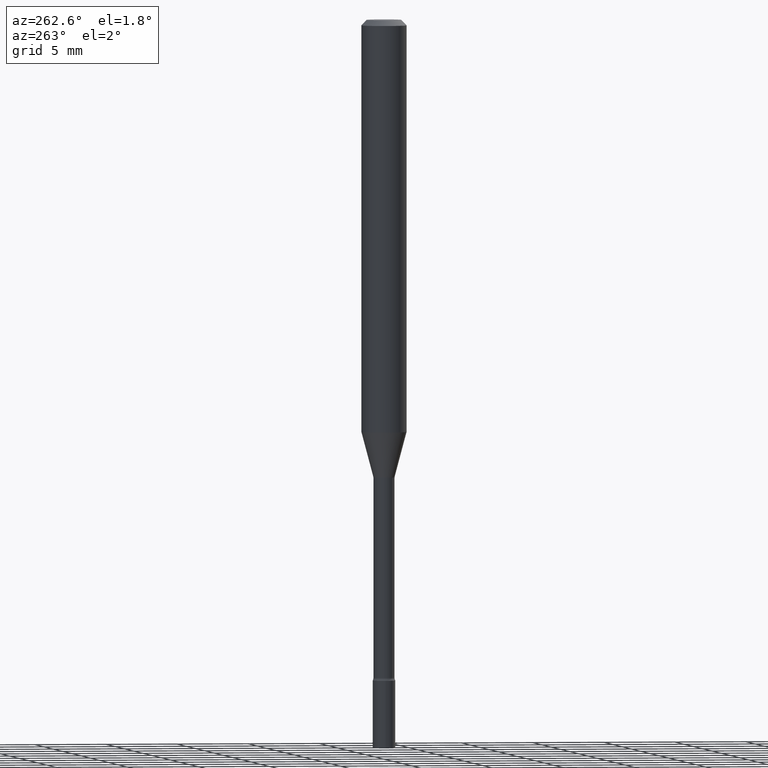
[diagram: clean part render]
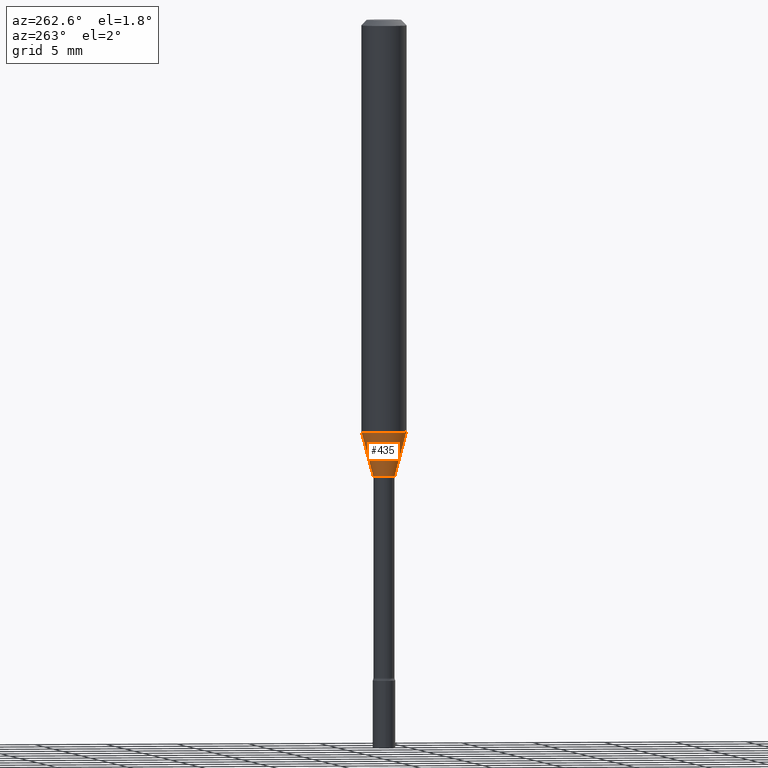
[diagram: same view with one face highlighted and labeled with its STEP entity id]
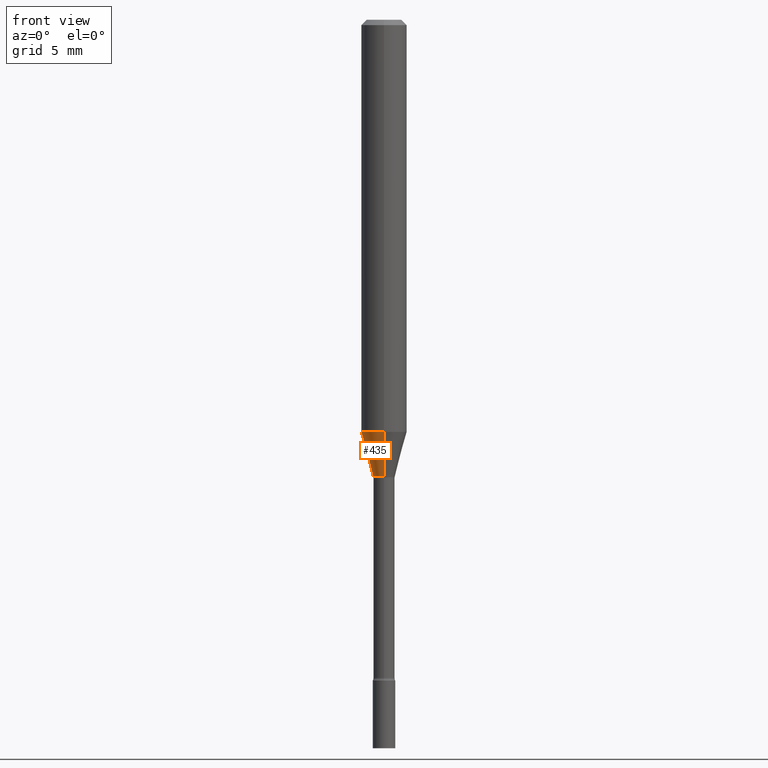
[diagram: same view with one face highlighted and labeled with its STEP entity id]
A machine part, auxiliary view. The second image highlights one B-rep face of the part: STEP entity #435.
A second angle (front view) of the same face is appended — the face is thin or edge-on in the first view.
In plain terms, the highlighted conical surface has half-angle 15 deg.
Its self-contained STEP definition (entity closure, byte-faithful):
#30 = VERTEX_POINT ( 'NONE', #201 ) ;
#35 = ORIENTED_EDGE ( 'NONE', *, *, #62, .T. ) ;
#41 = CIRCLE ( 'NONE', #130, 0.02966111260566398414 ) ;
#47 = VERTEX_POINT ( 'NONE', #249 ) ;
#54 = DIRECTION ( 'NONE',  ( -2.445484289899004441E-29, 3.491459165283608799E-15, 1.000000000000000000 ) ) ;
#62 = EDGE_CURVE ( 'NONE', #47, #30, #41, .T. ) ;
#87 = ORIENTED_EDGE ( 'NONE', *, *, #387, .T. ) ;
#117 = FACE_OUTER_BOUND ( 'NONE', #463, .T. ) ;
#121 = CARTESIAN_POINT ( 'NONE',  ( 4.440892098500900291E-16, 0.06249999999999602401, -1.131536105567578554 ) ) ;
#130 = AXIS2_PLACEMENT_3D ( 'NONE', #389, #54, #147 ) ;
#136 = EDGE_CURVE ( 'NONE', #47, #423, #365, .T. ) ;
#147 = DIRECTION ( 'NONE',  ( -6.982962677686265922E-15, -1.000000000000000000, 0.000000000000000000 ) ) ;
#168 = DIRECTION ( 'NONE',  ( 1.839019923739600710E-15, 0.2588190451025250138, 0.9659258262890670910 ) ) ;
#173 = CARTESIAN_POINT ( 'NONE',  ( -2.071224423039705600E-16, -0.02966111260566836605, -1.254092501787273051 ) ) ;
#176 = DIRECTION ( 'NONE',  ( -2.445484289899004441E-29, 3.491459165283608799E-15, 1.000000000000000000 ) ) ;
#201 = CARTESIAN_POINT ( 'NONE',  ( -2.071224423039705600E-16, -0.02966111260566836605, -1.254092501787273051 ) ) ;
#208 = DIRECTION ( 'NONE',  ( -2.445484289899004441E-29, 3.491459165283608799E-15, 1.000000000000000000 ) ) ;
#214 = CONICAL_SURFACE ( 'NONE', #508, 0.02966111260566398414, 0.2617993877991502960 ) ;
#221 = VECTOR ( 'NONE', #168, 39.37007874015748143 ) ;
#249 = CARTESIAN_POINT ( 'NONE',  ( 3.274220454076450364E-16, 0.02966111260565960916, -1.254092501787273051 ) ) ;
#257 = CARTESIAN_POINT ( 'NONE',  ( -4.364351673553641579E-16, -0.06250000000000396905, -1.131536105567578110 ) ) ;
#292 = CIRCLE ( 'NONE', #479, 0.06250000000000000000 ) ;
#341 = VERTEX_POINT ( 'NONE', #257 ) ;
#357 = LINE ( 'NONE', #173, #445 ) ;
#360 = DIRECTION ( 'NONE',  ( -6.982962677686265922E-15, -1.000000000000000000, 0.000000000000000000 ) ) ;
#365 = LINE ( 'NONE', #411, #221 ) ;
#372 = DIRECTION ( 'NONE',  ( -1.807323732225330534E-15, -0.2588190451025182415, 0.9659258262890689783 ) ) ;
#374 = DIRECTION ( 'NONE',  ( -6.982962677686265922E-15, -1.000000000000000000, 4.370956789862821150E-15 ) ) ;
#381 = EDGE_CURVE ( 'NONE', #423, #341, #292, .T. ) ;
#387 = EDGE_CURVE ( 'NONE', #30, #341, #357, .T. ) ;
#389 = CARTESIAN_POINT ( 'NONE',  ( 3.066863511200915083E-29, -4.378612759478625128E-15, -1.254092501787273051 ) ) ;
#411 = CARTESIAN_POINT ( 'NONE',  ( 2.107548809651994522E-16, 0.02966111260565960570, -1.254092501787273051 ) ) ;
#415 = CARTESIAN_POINT ( 'NONE',  ( 3.066863511200915083E-29, -4.378612759478625128E-15, -1.254092501787273051 ) ) ;
#420 = ORIENTED_EDGE ( 'NONE', *, *, #136, .F. ) ;
#423 = VERTEX_POINT ( 'NONE', #121 ) ;
#435 = ADVANCED_FACE ( 'NONE', ( #117 ), #214, .T. ) ;
#445 = VECTOR ( 'NONE', #372, 39.37007874015748143 ) ;
#452 = CARTESIAN_POINT ( 'NONE',  ( 2.767153769619014423E-29, -3.950712106633242110E-15, -1.131536105567578332 ) ) ;
#455 = ORIENTED_EDGE ( 'NONE', *, *, #381, .F. ) ;
#463 = EDGE_LOOP ( 'NONE', ( #420, #35, #87, #455 ) ) ;
#479 = AXIS2_PLACEMENT_3D ( 'NONE', #452, #208, #374 ) ;
#508 = AXIS2_PLACEMENT_3D ( 'NONE', #415, #176, #360 ) ;